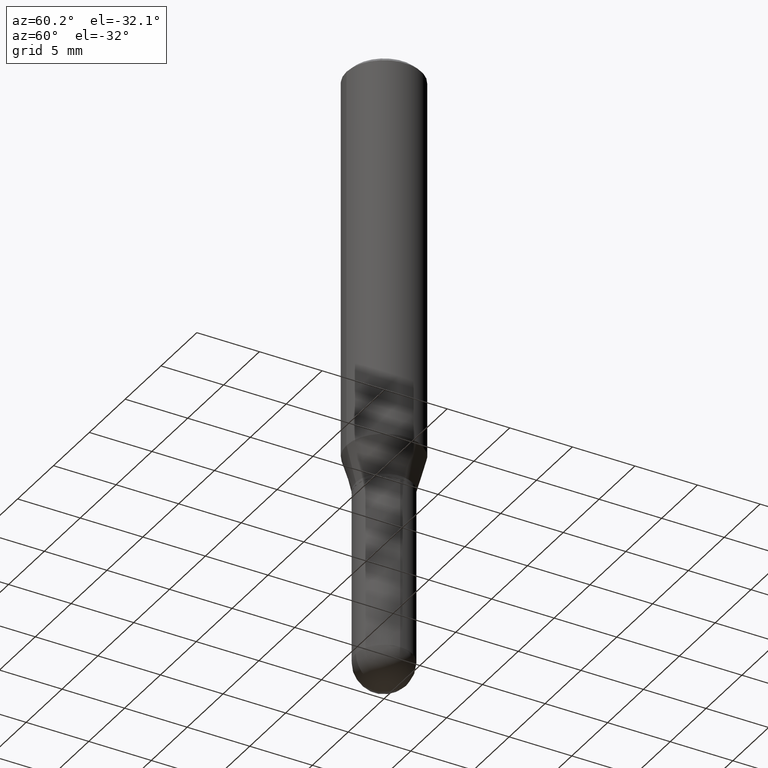
[diagram: clean part render]
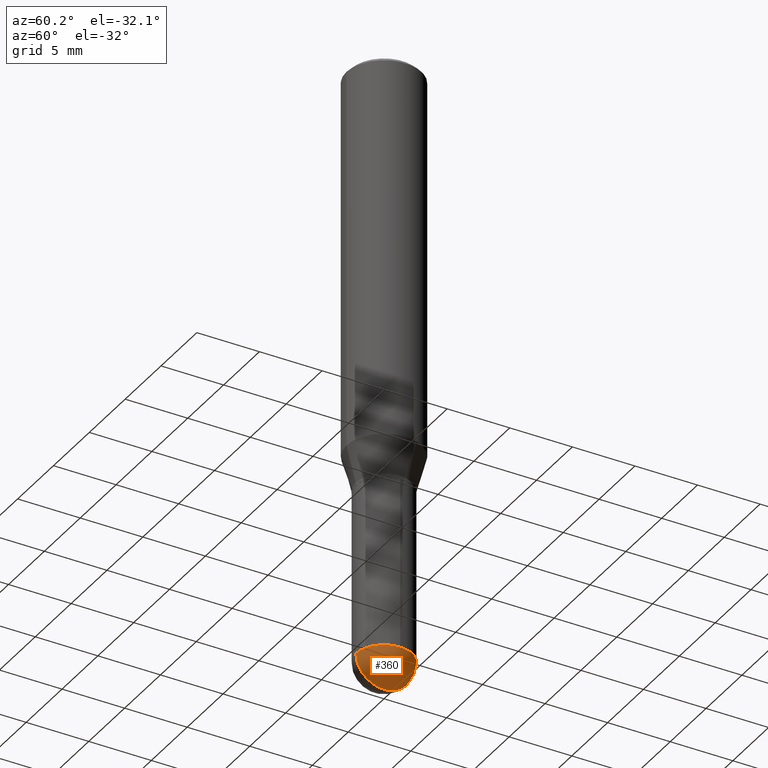
[diagram: same view with one face highlighted and labeled with its STEP entity id]
A machine part, auxiliary view. The second image highlights one B-rep face of the part: STEP entity #360.
In plain terms, the highlighted spherical surface has radius 2.2504 mm.
Its self-contained STEP definition (entity closure, byte-faithful):
#15 = DIRECTION ( 'NONE',  ( 1.000000000000000000, -6.982962677686270655E-15, 0.000000000000000000 ) ) ;
#30 = DIRECTION ( 'NONE',  ( -7.105427357600999492E-15, -1.000000000000000000, 0.000000000000000000 ) ) ;
#36 = CARTESIAN_POINT ( 'NONE',  ( 6.186904932430488054E-16, 0.08859999999999342013, -1.879900000000000126 ) ) ;
#42 = CIRCLE ( 'NONE', #239, 0.08859999999999998432 ) ;
#46 = CARTESIAN_POINT ( 'NONE',  ( 4.597236808747438107E-29, -6.563635768891228653E-15, -1.879899999999999904 ) ) ;
#89 = AXIS2_PLACEMENT_3D ( 'NONE', #429, #224, #152 ) ;
#90 = CIRCLE ( 'NONE', #309, 0.08859999999999998432 ) ;
#91 = CARTESIAN_POINT ( 'NONE',  ( 4.597236808747438107E-29, -6.563635768891228653E-15, -1.879899999999999904 ) ) ;
#101 = DIRECTION ( 'NONE',  ( -1.000000000000000000, 7.105427357601001070E-15, -4.926315508542082329E-29 ) ) ;
#113 = DIRECTION ( 'NONE',  ( 6.982962677686265133E-15, 1.000000000000000000, 0.000000000000000000 ) ) ;
#135 = VERTEX_POINT ( 'NONE', #36 ) ;
#148 = CARTESIAN_POINT ( 'NONE',  ( 4.589660035425309027E-29, -6.574486139531674551E-15, -1.879900000000000126 ) ) ;
#152 = DIRECTION ( 'NONE',  ( 6.982962677686265133E-15, 1.000000000000000000, -3.083349879982239114E-15 ) ) ;
#160 = CIRCLE ( 'NONE', #383, 0.08859999999999998432 ) ;
#162 = EDGE_CURVE ( 'NONE', #322, #175, #42, .T. ) ;
#169 = CARTESIAN_POINT ( 'NONE',  ( -6.295408638834025049E-16, -0.08860000000000653464, -1.879899999999999460 ) ) ;
#174 = DIRECTION ( 'NONE',  ( 1.000000000000000000, -6.982962677686270655E-15, 0.000000000000000000 ) ) ;
#175 = VERTEX_POINT ( 'NONE', #405 ) ;
#198 = EDGE_LOOP ( 'NONE', ( #393, #357, #366, #202 ) ) ;
#202 = ORIENTED_EDGE ( 'NONE', *, *, #162, .F. ) ;
#224 = DIRECTION ( 'NONE',  ( -1.000000000000000000, 6.982962677686265133E-15, -4.883557194083112340E-29 ) ) ;
#239 = AXIS2_PLACEMENT_3D ( 'NONE', #46, #249, #174 ) ;
#248 = EDGE_CURVE ( 'NONE', #175, #135, #287, .T. ) ;
#249 = DIRECTION ( 'NONE',  ( -2.445468806185136597E-29, 3.491481338843145583E-15, 1.000000000000000000 ) ) ;
#253 = CARTESIAN_POINT ( 'NONE',  ( 4.810116958314376734E-29, -6.878406200832954656E-15, -1.968500000000000139 ) ) ;
#287 = CIRCLE ( 'NONE', #416, 0.08859999999999998432 ) ;
#296 = VERTEX_POINT ( 'NONE', #253 ) ;
#309 = AXIS2_PLACEMENT_3D ( 'NONE', #431, #310, #113 ) ;
#310 = DIRECTION ( 'NONE',  ( 1.000000000000000000, -6.982962677686265922E-15, 4.883557194083112340E-29 ) ) ;
#322 = VERTEX_POINT ( 'NONE', #169 ) ;
#357 = ORIENTED_EDGE ( 'NONE', *, *, #479, .T. ) ;
#360 = ADVANCED_FACE ( 'NONE', ( #380 ), #467, .T. ) ;
#366 = ORIENTED_EDGE ( 'NONE', *, *, #248, .F. ) ;
#372 = EDGE_CURVE ( 'NONE', #296, #322, #160, .T. ) ;
#380 = FACE_OUTER_BOUND ( 'NONE', #198, .T. ) ;
#383 = AXIS2_PLACEMENT_3D ( 'NONE', #148, #101, #30 ) ;
#393 = ORIENTED_EDGE ( 'NONE', *, *, #372, .F. ) ;
#405 = CARTESIAN_POINT ( 'NONE',  ( 0.08859999999999998432, -6.237356837776335042E-15, -1.879899999999999904 ) ) ;
#416 = AXIS2_PLACEMENT_3D ( 'NONE', #91, #449, #15 ) ;
#429 = CARTESIAN_POINT ( 'NONE',  ( 4.589660035425309027E-29, -6.574486139531674551E-15, -1.879900000000000126 ) ) ;
#431 = CARTESIAN_POINT ( 'NONE',  ( 4.589660035425309027E-29, -6.574486139531674551E-15, -1.879900000000000126 ) ) ;
#449 = DIRECTION ( 'NONE',  ( -2.445468806185136597E-29, 3.491481338843145583E-15, 1.000000000000000000 ) ) ;
#467 = SPHERICAL_SURFACE ( 'NONE', #89, 0.08859999999999998432 ) ;
#479 = EDGE_CURVE ( 'NONE', #296, #135, #90, .T. ) ;